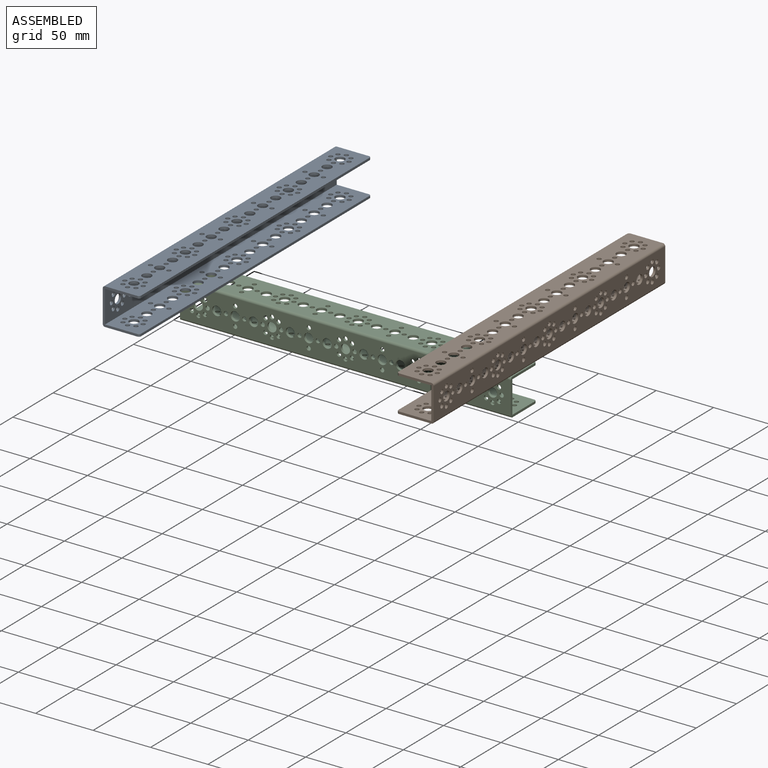
[diagram: assembled view]
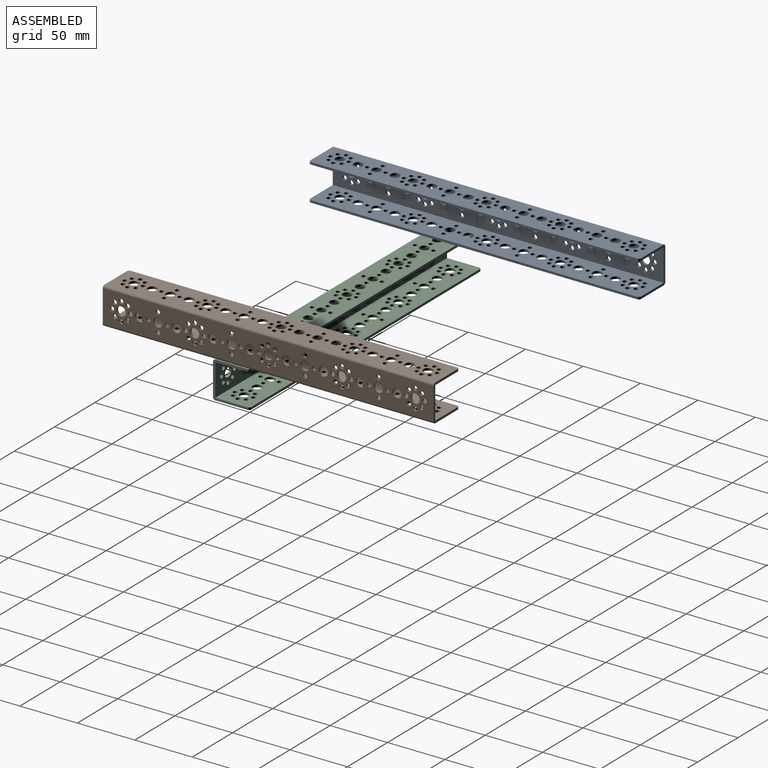
[diagram: assembled view, second angle]
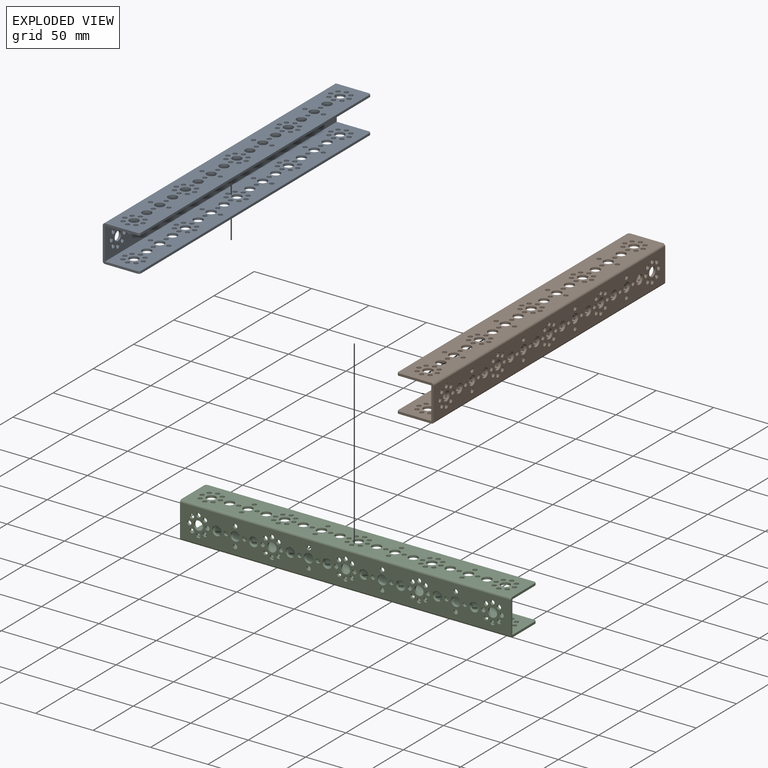
[diagram: exploded view]
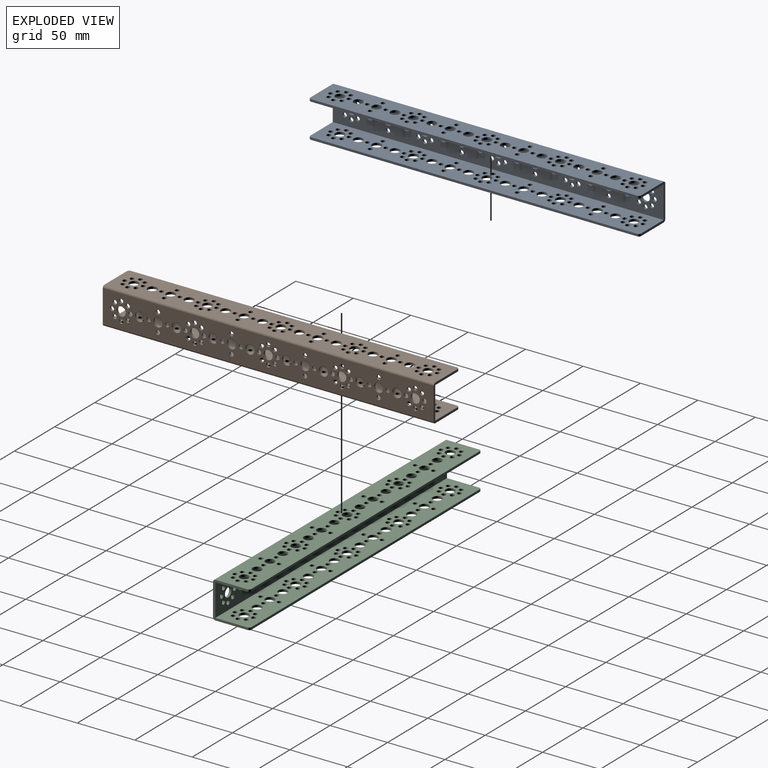
[diagram: exploded view, second angle]
ASSEMBLY  parts=3 mates=2
PART A: 235 faces, bbox 32x288x32 mm
  f0: plane 288x30mm, normal (1,0,0), area 7181.7mm2, adj f1,f8,f9,f84,f86,f88,f90,f92
  f1: plane 284x2mm, normal (0,0,-1), area 568mm2, adj f0,f2,f230,f232
  f2: plane 288x30mm, normal (-1,0,0), area 7181.7mm2, adj f1,f3,f8,f9,f84,f86,f88,f90
  f3: plane 288x28mm, normal (0,0,-1), area 6607.4mm2, adj f2,f4,f8,f9,f10,f11,f12,f13
  f4: plane 288x30mm, normal (1,0,0), area 7181.7mm2, adj f3,f5,f8,f9,f83,f85,f87,f89
  f5: plane 284x2mm, normal (0,0,-1), area 568mm2, adj f4,f6,f229,f231
  f6: plane 288x30mm, normal (-1,0,0), area 7181.7mm2, adj f5,f8,f9,f83,f85,f87,f89,f91
  f7: plane 288x28mm, normal (0,0,1), area 6607.4mm2, adj f8,f9,f10,f11,f12,f13,f14,f15
  f8: plane 32x30mm, normal (0,1,0), area 174.3mm2, adj f0,f2,f3,f4,f6,f7,f229,f230
  f9: plane 32x30mm, normal (0,-1,0), area 174.3mm2, adj f0,f2,f3,f4,f6,f7,f231,f232
  f10: cylinder r=1.85mm len=3.7mm, axis (0,0,1), area 23.2mm2, adj f3,f7
  f11: cylinder r=1.85mm len=3.7mm, axis (0,0,1), area 23.2mm2, adj f3,f7
  f12: cylinder r=4mm len=8mm, axis (0,0,1), area 50.3mm2, adj f3,f7
  f13: cylinder r=4mm len=8mm, axis (0,0,1), area 50.3mm2, adj f3,f7
  f14: cylinder r=4mm len=8mm, axis (0,0,1), area 50.3mm2, adj f3,f7
  f15: cylinder r=4mm len=8mm, axis (0,0,1), area 50.3mm2, adj f3,f7
  f16: cylinder r=4mm len=8mm, axis (0,0,1), area 50.3mm2, adj f3,f7
  f17: cylinder r=1.85mm len=3.7mm, axis (0,0,1), area 23.2mm2, adj f3,f7
  f18: cylinder r=1.85mm len=3.7mm, axis (0,0,1), area 23.2mm2, adj f3,f7
  f19: cylinder r=1.85mm len=3.7mm, axis (0,0,1), area 23.2mm2, adj f3,f7
  f20: cylinder r=1.85mm len=3.7mm, axis (0,0,1), area 23.2mm2, adj f3,f7
  f21: cylinder r=4mm len=8mm, axis (0,0,1), area 50.3mm2, adj f3,f7
  f22: cylinder r=1.85mm len=3.7mm, axis (0,0,1), area 23.2mm2, adj f3,f7
  f23: cylinder r=1.85mm len=3.7mm, axis (0,0,1), area 23.2mm2, adj f3,f7
  f24: cylinder r=1.85mm len=3.7mm, axis (0,0,1), area 23.2mm2, adj f3,f7
  f25: cylinder r=1.85mm len=3.7mm, axis (0,0,1), area 23.2mm2, adj f3,f7
  f26: cylinder r=1.85mm len=3.7mm, axis (0,0,1), area 23.2mm2, adj f3,f7
  f27: cylinder r=1.85mm len=3.7mm, axis (0,0,1), area 23.2mm2, adj f3,f7
  f28: cylinder r=4mm len=8mm, axis (0,0,1), area 50.3mm2, adj f3,f7
  f29: cylinder r=1.85mm len=3.7mm, axis (0,0,1), area 23.2mm2, adj f3,f7
  f30: cylinder r=1.85mm len=3.7mm, axis (0,0,1), area 23.2mm2, adj f3,f7
  f31: cylinder r=1.85mm len=3.7mm, axis (0,0,1), area 23.2mm2, adj f3,f7
  f32: cylinder r=1.85mm len=3.7mm, axis (0,0,1), area 23.2mm2, adj f3,f7
  f33: cylinder r=4mm len=8mm, axis (0,0,1), area 50.3mm2, adj f3,f7
  f34: cylinder r=1.85mm len=3.7mm, axis (0,0,1), area 23.2mm2, adj f3,f7
  f35: cylinder r=1.85mm len=3.7mm, axis (0,0,1), area 23.2mm2, adj f3,f7
  f36: cylinder r=1.85mm len=3.7mm, axis (0,0,1), area 23.2mm2, adj f3,f7
  f37: cylinder r=1.85mm len=3.7mm, axis (0,0,1), area 23.2mm2, adj f3,f7
  f38: cylinder r=1.85mm len=3.7mm, axis (0,0,1), area 23.2mm2, adj f3,f7
  f39: cylinder r=1.85mm len=3.7mm, axis (0,0,1), area 23.2mm2, adj f3,f7
  f40: cylinder r=1.85mm len=3.7mm, axis (0,0,1), area 23.2mm2, adj f3,f7
  f41: cylinder r=1.85mm len=3.7mm, axis (0,0,1), area 23.2mm2, adj f3,f7
  f42: cylinder r=4mm len=8mm, axis (0,0,1), area 50.3mm2, adj f3,f7
  f43: cylinder r=4mm len=8mm, axis (0,0,1), area 50.3mm2, adj f3,f7
  f44: cylinder r=4mm len=8mm, axis (0,0,1), area 50.3mm2, adj f3,f7
  f45: cylinder r=4mm len=8mm, axis (0,0,1), area 50.3mm2, adj f3,f7
  f46: cylinder r=4mm len=8mm, axis (0,0,1), area 50.3mm2, adj f3,f7
  f47: cylinder r=1.85mm len=3.7mm, axis (0,0,1), area 23.2mm2, adj f3,f7
  f48: cylinder r=1.85mm len=3.7mm, axis (0,0,1), area 23.2mm2, adj f3,f7
  f49: cylinder r=1.85mm len=3.7mm, axis (0,0,1), area 23.2mm2, adj f3,f7
  f50: cylinder r=1.85mm len=3.7mm, axis (0,0,1), area 23.2mm2, adj f3,f7
  f51: cylinder r=4mm len=8mm, axis (0,0,1), area 50.3mm2, adj f3,f7
  f52: cylinder r=1.85mm len=3.7mm, axis (0,0,1), area 23.2mm2, adj f3,f7
  f53: cylinder r=1.85mm len=3.7mm, axis (0,0,1), area 23.2mm2, adj f3,f7
  f54: cylinder r=1.85mm len=3.7mm, axis (0,0,1), area 23.2mm2, adj f3,f7
  f55: cylinder r=1.85mm len=3.7mm, axis (0,0,1), area 23.2mm2, adj f3,f7
  f56: cylinder r=1.85mm len=3.7mm, axis (0,0,1), area 23.2mm2, adj f3,f7
  f57: cylinder r=1.85mm len=3.7mm, axis (0,0,1), area 23.2mm2, adj f3,f7
  f58: cylinder r=1.85mm len=3.7mm, axis (0,0,1), area 23.2mm2, adj f3,f7
  f59: cylinder r=1.85mm len=3.7mm, axis (0,0,1), area 23.2mm2, adj f3,f7
  f60: cylinder r=4mm len=8mm, axis (0,0,1), area 50.3mm2, adj f3,f7
  f61: cylinder r=1.85mm len=3.7mm, axis (0,0,1), area 23.2mm2, adj f3,f7
  f62: cylinder r=1.85mm len=3.7mm, axis (0,0,1), area 23.2mm2, adj f3,f7
  f63: cylinder r=1.85mm len=3.7mm, axis (0,0,1), area 23.2mm2, adj f3,f7
  f64: cylinder r=1.85mm len=3.7mm, axis (0,0,1), area 23.2mm2, adj f3,f7
  f65: cylinder r=4mm len=8mm, axis (0,0,1), area 50.3mm2, adj f3,f7
  f66: cylinder r=1.85mm len=3.7mm, axis (0,0,1), area 23.2mm2, adj f3,f7
  f67: cylinder r=1.85mm len=3.7mm, axis (0,0,1), area 23.2mm2, adj f3,f7
  f68: cylinder r=1.85mm len=3.7mm, axis (0,0,1), area 23.2mm2, adj f3,f7
  f69: cylinder r=1.85mm len=3.7mm, axis (0,0,1), area 23.2mm2, adj f3,f7
  f70: cylinder r=1.85mm len=3.7mm, axis (0,0,1), area 23.2mm2, adj f3,f7
  f71: cylinder r=1.85mm len=3.7mm, axis (0,0,1), area 23.2mm2, adj f3,f7
  f72: cylinder r=1.85mm len=3.7mm, axis (0,0,1), area 23.2mm2, adj f3,f7
  f73: cylinder r=1.85mm len=3.7mm, axis (0,0,1), area 23.2mm2, adj f3,f7
  f74: cylinder r=1.85mm len=3.7mm, axis (0,0,1), area 23.2mm2, adj f3,f7
  f75: cylinder r=1.85mm len=3.7mm, axis (0,0,1), area 23.2mm2, adj f3,f7
  f76: cylinder r=4mm len=8mm, axis (0,0,1), area 50.3mm2, adj f3,f7
  f77: cylinder r=1.85mm len=3.7mm, axis (0,0,1), area 23.2mm2, adj f3,f7
  f78: cylinder r=1.85mm len=3.7mm, axis (0,0,1), area 23.2mm2, adj f3,f7
  f79: cylinder r=1.85mm len=3.7mm, axis (0,0,1), area 23.2mm2, adj f3,f7
  f80: cylinder r=1.85mm len=3.7mm, axis (0,0,1), area 23.2mm2, adj f3,f7
  f81: cylinder r=1.85mm len=3.7mm, axis (0,0,1), area 23.2mm2, adj f3,f7
  f82: cylinder r=1.85mm len=3.7mm, axis (0,0,1), area 23.2mm2, adj f3,f7
  f83: cylinder r=1.85mm len=3.7mm, axis (1,0,0), area 23.2mm2, adj f4,f6
  f84: cylinder r=1.85mm len=3.7mm, axis (1,0,0), area 23.2mm2, adj f0,f2
  f85: cylinder r=1.85mm len=3.7mm, axis (1,0,0), area 23.2mm2, adj f4,f6
  f86: cylinder r=1.85mm len=3.7mm, axis (1,0,0), area 23.2mm2, adj f0,f2
  f87: cylinder r=4mm len=8mm, axis (1,0,0), area 50.3mm2, adj f4,f6
  f88: cylinder r=4mm len=8mm, axis (1,0,0), area 50.3mm2, adj f0,f2
  f89: cylinder r=4mm len=8mm, axis (1,0,0), area 50.3mm2, adj f4,f6
  f90: cylinder r=4mm len=8mm, axis (1,0,0), area 50.3mm2, adj f0,f2
  f91: cylinder r=4mm len=8mm, axis (1,0,0), area 50.3mm2, adj f4,f6
  f92: cylinder r=4mm len=8mm, axis (1,0,0), area 50.3mm2, adj f0,f2
  f93: cylinder r=4mm len=8mm, axis (1,0,0), area 50.3mm2, adj f4,f6
  f94: cylinder r=4mm len=8mm, axis (1,0,0), area 50.3mm2, adj f0,f2
  f95: cylinder r=4mm len=8mm, axis (1,0,0), area 50.3mm2, adj f4,f6
  f96: cylinder r=4mm len=8mm, axis (1,0,0), area 50.3mm2, adj f0,f2
  f97: cylinder r=1.85mm len=3.7mm, axis (1,0,0), area 23.2mm2, adj f4,f6
  f98: cylinder r=1.85mm len=3.7mm, axis (1,0,0), area 23.2mm2, adj f0,f2
  f99: cylinder r=1.85mm len=3.7mm, axis (1,0,0), area 23.2mm2, adj f4,f6
  f100: cylinder r=1.85mm len=3.7mm, axis (1,0,0), area 23.2mm2, adj f0,f2
  f101: cylinder r=1.85mm len=3.7mm, axis (1,0,0), area 23.2mm2, adj f4,f6
  f102: cylinder r=1.85mm len=3.7mm, axis (1,0,0), area 23.2mm2, adj f0,f2
  f103: cylinder r=1.85mm len=3.7mm, axis (1,0,0), area 23.2mm2, adj f4,f6
  f104: cylinder r=1.85mm len=3.7mm, axis (1,0,0), area 23.2mm2, adj f0,f2
  f105: cylinder r=4mm len=8mm, axis (1,0,0), area 50.3mm2, adj f4,f6
  f106: cylinder r=4mm len=8mm, axis (1,0,0), area 50.3mm2, adj f0,f2
  f107: cylinder r=1.85mm len=3.7mm, axis (1,0,0), area 23.2mm2, adj f4,f6
  f108: cylinder r=1.85mm len=3.7mm, axis (1,0,0), area 23.2mm2, adj f0,f2
  f109: cylinder r=1.85mm len=3.7mm, axis (1,0,0), area 23.2mm2, adj f4,f6
  f110: cylinder r=1.85mm len=3.7mm, axis (1,0,0), area 23.2mm2, adj f0,f2
  f111: cylinder r=1.85mm len=3.7mm, axis (1,0,0), area 23.2mm2, adj f4,f6
  f112: cylinder r=1.85mm len=3.7mm, axis (1,0,0), area 23.2mm2, adj f0,f2
  f113: cylinder r=1.85mm len=3.7mm, axis (1,0,0), area 23.2mm2, adj f4,f6
  f114: cylinder r=1.85mm len=3.7mm, axis (1,0,0), area 23.2mm2, adj f0,f2
  f115: cylinder r=1.85mm len=3.7mm, axis (1,0,0), area 23.2mm2, adj f4,f6
  f116: cylinder r=1.85mm len=3.7mm, axis (1,0,0), area 23.2mm2, adj f0,f2
  f117: cylinder r=1.85mm len=3.7mm, axis (1,0,0), area 23.2mm2, adj f4,f6
  f118: cylinder r=1.85mm len=3.7mm, axis (1,0,0), area 23.2mm2, adj f0,f2
  f119: cylinder r=4mm len=8mm, axis (1,0,0), area 50.3mm2, adj f4,f6
  f120: cylinder r=4mm len=8mm, axis (1,0,0), area 50.3mm2, adj f0,f2
  f121: cylinder r=1.85mm len=3.7mm, axis (1,0,0), area 23.2mm2, adj f4,f6
  f122: cylinder r=1.85mm len=3.7mm, axis (1,0,0), area 23.2mm2, adj f0,f2
  f123: cylinder r=1.85mm len=3.7mm, axis (1,0,0), area 23.2mm2, adj f4,f6
  f124: cylinder r=1.85mm len=3.7mm, axis (1,0,0), area 23.2mm2, adj f0,f2
  f125: cylinder r=1.85mm len=3.7mm, axis (1,0,0), area 23.2mm2, adj f4,f6
  f126: cylinder r=1.85mm len=3.7mm, axis (1,0,0), area 23.2mm2, adj f0,f2
  f127: cylinder r=1.85mm len=3.7mm, axis (1,0,0), area 23.2mm2, adj f4,f6
  f128: cylinder r=1.85mm len=3.7mm, axis (1,0,0), area 23.2mm2, adj f0,f2
  f129: cylinder r=4mm len=8mm, axis (1,0,0), area 50.3mm2, adj f4,f6
  f130: cylinder r=4mm len=8mm, axis (1,0,0), area 50.3mm2, adj f0,f2
  f131: cylinder r=1.85mm len=3.7mm, axis (1,0,0), area 23.2mm2, adj f4,f6
  f132: cylinder r=1.85mm len=3.7mm, axis (1,0,0), area 23.2mm2, adj f0,f2
  f133: cylinder r=1.85mm len=3.7mm, axis (1,0,0), area 23.2mm2, adj f4,f6
  f134: cylinder r=1.85mm len=3.7mm, axis (1,0,0), area 23.2mm2, adj f0,f2
  f135: cylinder r=1.85mm len=3.7mm, axis (1,0,0), area 23.2mm2, adj f4,f6
  f136: cylinder r=1.85mm len=3.7mm, axis (1,0,0), area 23.2mm2, adj f0,f2
  f137: cylinder r=1.85mm len=3.7mm, axis (1,0,0), area 23.2mm2, adj f4,f6
  f138: cylinder r=1.85mm len=3.7mm, axis (1,0,0), area 23.2mm2, adj f0,f2
  f139: cylinder r=1.85mm len=3.7mm, axis (1,0,0), area 23.2mm2, adj f4,f6
  f140: cylinder r=1.85mm len=3.7mm, axis (1,0,0), area 23.2mm2, adj f0,f2
  f141: cylinder r=1.85mm len=3.7mm, axis (1,0,0), area 23.2mm2, adj f4,f6
  f142: cylinder r=1.85mm len=3.7mm, axis (1,0,0), area 23.2mm2, adj f0,f2
  f143: cylinder r=1.85mm len=3.7mm, axis (1,0,0), area 23.2mm2, adj f4,f6
  f144: cylinder r=1.85mm len=3.7mm, axis (1,0,0), area 23.2mm2, adj f0,f2
  f145: cylinder r=1.85mm len=3.7mm, axis (1,0,0), area 23.2mm2, adj f4,f6
  f146: cylinder r=1.85mm len=3.7mm, axis (1,0,0), area 23.2mm2, adj f0,f2
  f147: cylinder r=4mm len=8mm, axis (1,0,0), area 50.3mm2, adj f4,f6
  f148: cylinder r=4mm len=8mm, axis (1,0,0), area 50.3mm2, adj f0,f2
  f149: cylinder r=4mm len=8mm, axis (1,0,0), area 50.3mm2, adj f4,f6
  f150: cylinder r=4mm len=8mm, axis (1,0,0), area 50.3mm2, adj f0,f2
  f151: cylinder r=4mm len=8mm, axis (1,0,0), area 50.3mm2, adj f4,f6
  f152: cylinder r=4mm len=8mm, axis (1,0,0), area 50.3mm2, adj f0,f2
  f153: cylinder r=4mm len=8mm, axis (1,0,0), area 50.3mm2, adj f4,f6
  f154: cylinder r=4mm len=8mm, axis (1,0,0), area 50.3mm2, adj f0,f2
  f155: cylinder r=4mm len=8mm, axis (1,0,0), area 50.3mm2, adj f4,f6
  f156: cylinder r=4mm len=8mm, axis (1,0,0), area 50.3mm2, adj f0,f2
  f157: cylinder r=1.85mm len=3.7mm, axis (1,0,0), area 23.2mm2, adj f4,f6
  f158: cylinder r=1.85mm len=3.7mm, axis (1,0,0), area 23.2mm2, adj f0,f2
  f159: cylinder r=1.85mm len=3.7mm, axis (1,0,0), area 23.2mm2, adj f4,f6
  f160: cylinder r=1.85mm len=3.7mm, axis (1,0,0), area 23.2mm2, adj f0,f2
  f161: cylinder r=1.85mm len=3.7mm, axis (1,0,0), area 23.2mm2, adj f4,f6
  f162: cylinder r=1.85mm len=3.7mm, axis (1,0,0), area 23.2mm2, adj f0,f2
  f163: cylinder r=1.85mm len=3.7mm, axis (1,0,0), area 23.2mm2, adj f4,f6
  f164: cylinder r=1.85mm len=3.7mm, axis (1,0,0), area 23.2mm2, adj f0,f2
  f165: cylinder r=4mm len=8mm, axis (1,0,0), area 50.3mm2, adj f4,f6
  f166: cylinder r=4mm len=8mm, axis (1,0,0), area 50.3mm2, adj f0,f2
  f167: cylinder r=1.85mm len=3.7mm, axis (1,0,0), area 23.2mm2, adj f4,f6
  f168: cylinder r=1.85mm len=3.7mm, axis (1,0,0), area 23.2mm2, adj f0,f2
  f169: cylinder r=1.85mm len=3.7mm, axis (1,0,0), area 23.2mm2, adj f4,f6
  f170: cylinder r=1.85mm len=3.7mm, axis (1,0,0), area 23.2mm2, adj f0,f2
  f171: cylinder r=1.85mm len=3.7mm, axis (1,0,0), area 23.2mm2, adj f4,f6
  f172: cylinder r=1.85mm len=3.7mm, axis (1,0,0), area 23.2mm2, adj f0,f2
  f173: cylinder r=1.85mm len=3.7mm, axis (1,0,0), area 23.2mm2, adj f4,f6
  f174: cylinder r=1.85mm len=3.7mm, axis (1,0,0), area 23.2mm2, adj f0,f2
  f175: cylinder r=1.85mm len=3.7mm, axis (1,0,0), area 23.2mm2, adj f4,f6
  f176: cylinder r=1.85mm len=3.7mm, axis (1,0,0), area 23.2mm2, adj f0,f2
  f177: cylinder r=1.85mm len=3.7mm, axis (1,0,0), area 23.2mm2, adj f4,f6
  f178: cylinder r=1.85mm len=3.7mm, axis (1,0,0), area 23.2mm2, adj f0,f2
  f179: cylinder r=1.85mm len=3.7mm, axis (1,0,0), area 23.2mm2, adj f4,f6
  f180: cylinder r=1.85mm len=3.7mm, axis (1,0,0), area 23.2mm2, adj f0,f2
  f181: cylinder r=1.85mm len=3.7mm, axis (1,0,0), area 23.2mm2, adj f4,f6
  f182: cylinder r=1.85mm len=3.7mm, axis (1,0,0), area 23.2mm2, adj f0,f2
  f183: cylinder r=4mm len=8mm, axis (1,0,0), area 50.3mm2, adj f4,f6
  f184: cylinder r=4mm len=8mm, axis (1,0,0), area 50.3mm2, adj f0,f2
  f185: cylinder r=1.85mm len=3.7mm, axis (1,0,0), area 23.2mm2, adj f4,f6
  f186: cylinder r=1.85mm len=3.7mm, axis (1,0,0), area 23.2mm2, adj f0,f2
  f187: cylinder r=1.85mm len=3.7mm, axis (1,0,0), area 23.2mm2, adj f4,f6
  f188: cylinder r=1.85mm len=3.7mm, axis (1,0,0), area 23.2mm2, adj f0,f2
  f189: cylinder r=1.85mm len=3.7mm, axis (1,0,0), area 23.2mm2, adj f4,f6
  f190: cylinder r=1.85mm len=3.7mm, axis (1,0,0), area 23.2mm2, adj f0,f2
  f191: cylinder r=1.85mm len=3.7mm, axis (1,0,0), area 23.2mm2, adj f4,f6
  f192: cylinder r=1.85mm len=3.7mm, axis (1,0,0), area 23.2mm2, adj f0,f2
  f193: cylinder r=4mm len=8mm, axis (1,0,0), area 50.3mm2, adj f4,f6
  f194: cylinder r=4mm len=8mm, axis (1,0,0), area 50.3mm2, adj f0,f2
  f195: cylinder r=1.85mm len=3.7mm, axis (1,0,0), area 23.2mm2, adj f4,f6
  f196: cylinder r=1.85mm len=3.7mm, axis (1,0,0), area 23.2mm2, adj f0,f2
  f197: cylinder r=1.85mm len=3.7mm, axis (1,0,0), area 23.2mm2, adj f4,f6
  f198: cylinder r=1.85mm len=3.7mm, axis (1,0,0), area 23.2mm2, adj f0,f2
  f199: cylinder r=1.85mm len=3.7mm, axis (1,0,0), area 23.2mm2, adj f4,f6
  f200: cylinder r=1.85mm len=3.7mm, axis (1,0,0), area 23.2mm2, adj f0,f2
  f201: cylinder r=1.85mm len=3.7mm, axis (1,0,0), area 23.2mm2, adj f4,f6
  f202: cylinder r=1.85mm len=3.7mm, axis (1,0,0), area 23.2mm2, adj f0,f2
  f203: cylinder r=1.85mm len=3.7mm, axis (1,0,0), area 23.2mm2, adj f4,f6
  f204: cylinder r=1.85mm len=3.7mm, axis (1,0,0), area 23.2mm2, adj f0,f2
  f205: cylinder r=1.85mm len=3.7mm, axis (1,0,0), area 23.2mm2, adj f4,f6
  f206: cylinder r=1.85mm len=3.7mm, axis (1,0,0), area 23.2mm2, adj f0,f2
  f207: cylinder r=1.85mm len=3.7mm, axis (1,0,0), area 23.2mm2, adj f4,f6
  f208: cylinder r=1.85mm len=3.7mm, axis (1,0,0), area 23.2mm2, adj f0,f2
  f209: cylinder r=1.85mm len=3.7mm, axis (1,0,0), area 23.2mm2, adj f4,f6
  f210: cylinder r=1.85mm len=3.7mm, axis (1,0,0), area 23.2mm2, adj f0,f2
  f211: cylinder r=1.85mm len=3.7mm, axis (1,0,0), area 23.2mm2, adj f4,f6
  f212: cylinder r=1.85mm len=3.7mm, axis (1,0,0), area 23.2mm2, adj f0,f2
  f213: cylinder r=1.85mm len=3.7mm, axis (1,0,0), area 23.2mm2, adj f4,f6
  f214: cylinder r=1.85mm len=3.7mm, axis (1,0,0), area 23.2mm2, adj f0,f2
  f215: cylinder r=4mm len=8mm, axis (1,0,0), area 50.3mm2, adj f4,f6
  f216: cylinder r=4mm len=8mm, axis (1,0,0), area 50.3mm2, adj f0,f2
  f217: cylinder r=1.85mm len=3.7mm, axis (1,0,0), area 23.2mm2, adj f4,f6
  f218: cylinder r=1.85mm len=3.7mm, axis (1,0,0), area 23.2mm2, adj f0,f2
  f219: cylinder r=1.85mm len=3.7mm, axis (1,0,0), area 23.2mm2, adj f4,f6
  f220: cylinder r=1.85mm len=3.7mm, axis (1,0,0), area 23.2mm2, adj f0,f2
  f221: cylinder r=1.85mm len=3.7mm, axis (1,0,0), area 23.2mm2, adj f4,f6
  f222: cylinder r=1.85mm len=3.7mm, axis (1,0,0), area 23.2mm2, adj f0,f2
  f223: cylinder r=1.85mm len=3.7mm, axis (1,0,0), area 23.2mm2, adj f4,f6
  f224: cylinder r=1.85mm len=3.7mm, axis (1,0,0), area 23.2mm2, adj f0,f2
  f225: cylinder r=1.85mm len=3.7mm, axis (1,0,0), area 23.2mm2, adj f4,f6
  f226: cylinder r=1.85mm len=3.7mm, axis (1,0,0), area 23.2mm2, adj f0,f2
  f227: cylinder r=1.85mm len=3.7mm, axis (1,0,0), area 23.2mm2, adj f4,f6
  f228: cylinder r=1.85mm len=3.7mm, axis (1,0,0), area 23.2mm2, adj f0,f2
  f229: cylinder r=2mm len=2mm, axis (-1,0,0), area 6.3mm2, adj f4,f5,f6,f8
  f230: cylinder r=2mm len=2mm, axis (-1,0,0), area 6.3mm2, adj f0,f1,f2,f8
  f231: cylinder r=2mm len=2mm, axis (1,0,0), area 6.3mm2, adj f4,f5,f6,f9
  f232: cylinder r=2mm len=2mm, axis (1,0,0), area 6.3mm2, adj f0,f1,f2,f9
  f233: cylinder r=2mm len=288mm, axis (0,-1,0), area 904.8mm2, adj f6,f7,f8,f9
  f234: cylinder r=2mm len=288mm, axis (0,-1,0), area 904.8mm2, adj f0,f7,f8,f9
PART B: same geometry as A
PART C: same geometry as A
PLACE A rot(axis=(0,-1,0),90deg) t=(-259.32,-59.03,-40.26)mm
PLACE B rot(axis=(0,1,0),90deg) t=(-3.32,-59.03,-40.26)mm
PLACE C rot(axis=(0.58,-0.58,0.58),120deg) t=(12.68,52.97,-72.26)mm
MATE fastened C.f105 <-> B.f119  axis (0,0,1) through (-3.32,52.97,-56.26)mm
MATE fastened C.f165 <-> A.f119  axis (0,0,1) through (-259.32,52.97,-56.26)mm
